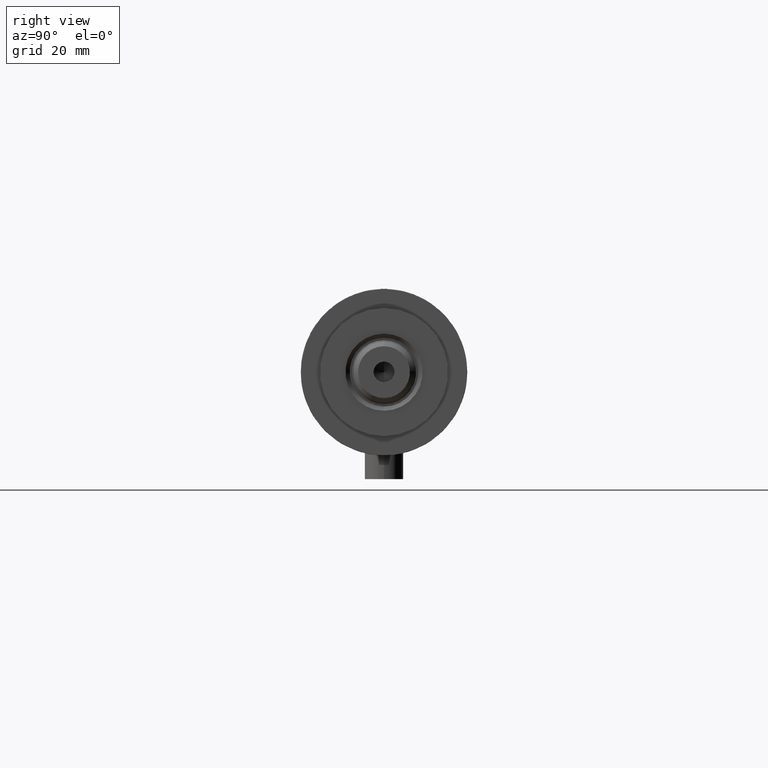
[diagram: clean part render]
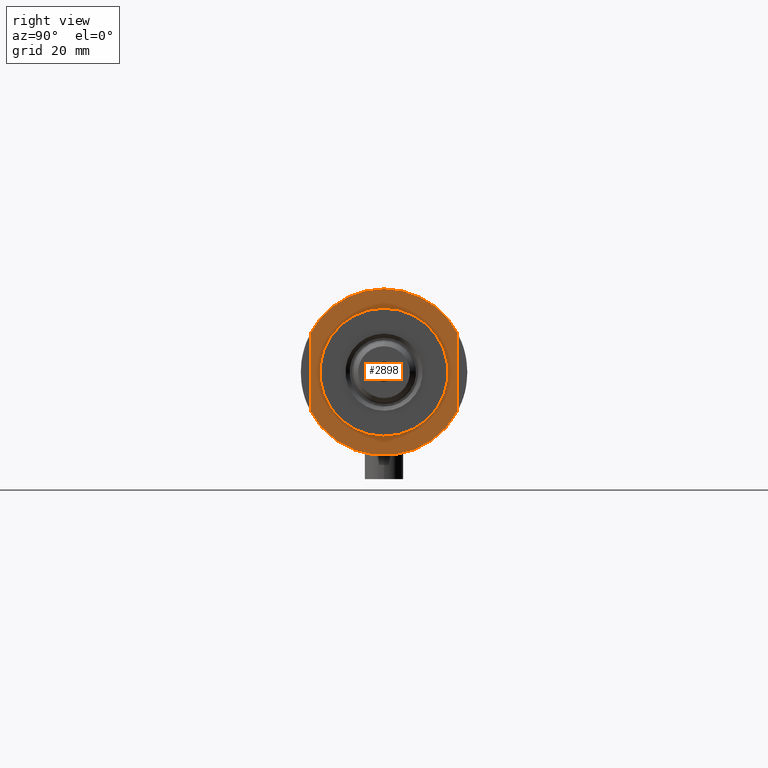
[diagram: same view with one face highlighted and labeled with its STEP entity id]
A machine part, right view. The second image highlights one B-rep face of the part: STEP entity #2898.
In plain terms, the highlighted planar face has unit normal (1, 0, -0).
Its self-contained STEP definition (entity closure, byte-faithful):
#16 = VERTEX_POINT ( 'NONE', #4367 ) ;
#134 = CIRCLE ( 'NONE', #823, 26.00000000000000355 ) ;
#142 = CIRCLE ( 'NONE', #4548, 20.00000000000000000 ) ;
#146 = EDGE_CURVE ( 'NONE', #4719, #4316, #142, .T. ) ;
#425 = EDGE_CURVE ( 'NONE', #1664, #4583, #134, .T. ) ;
#569 = ORIENTED_EDGE ( 'NONE', *, *, #1035, .F. ) ;
#601 = VECTOR ( 'NONE', #3834, 1000.000000000000000 ) ;
#668 = FACE_BOUND ( 'NONE', #2300, .T. ) ;
#681 = ORIENTED_EDGE ( 'NONE', *, *, #1603, .T. ) ;
#823 = AXIS2_PLACEMENT_3D ( 'NONE', #1490, #2991, #1113 ) ;
#824 = CARTESIAN_POINT ( 'NONE',  ( -12.12435565298215145, -22.99999999999999645, 15.50000000000000000 ) ) ;
#877 = LINE ( 'NONE', #824, #2982 ) ;
#893 = EDGE_LOOP ( 'NONE', ( #1367, #2591, #569, #3005, #2510 ) ) ;
#1035 = EDGE_CURVE ( 'NONE', #1664, #16, #4208, .T. ) ;
#1113 = DIRECTION ( 'NONE',  ( 1.000000000000000000, 0.000000000000000000, 0.000000000000000000 ) ) ;
#1157 = CARTESIAN_POINT ( 'NONE',  ( -20.00000000000000000, 2.449293598294706513E-15, 15.50000000000000000 ) ) ;
#1168 = AXIS2_PLACEMENT_3D ( 'NONE', #1865, #1842, #2183 ) ;
#1216 = EDGE_CURVE ( 'NONE', #4583, #3462, #2499, .T. ) ;
#1308 = AXIS2_PLACEMENT_3D ( 'NONE', #3103, #4608, #1616 ) ;
#1367 = ORIENTED_EDGE ( 'NONE', *, *, #3415, .F. ) ;
#1402 = DIRECTION ( 'NONE',  ( 1.000000000000000000, 0.000000000000000000, 0.000000000000000000 ) ) ;
#1490 = CARTESIAN_POINT ( 'NONE',  ( 0.000000000000000000, 0.000000000000000000, 15.50000000000000000 ) ) ;
#1603 = EDGE_CURVE ( 'NONE', #4316, #4719, #4625, .T. ) ;
#1616 = DIRECTION ( 'NONE',  ( 1.000000000000000000, 0.000000000000000000, 0.000000000000000000 ) ) ;
#1627 = AXIS2_PLACEMENT_3D ( 'NONE', #1757, #3307, #1402 ) ;
#1664 = VERTEX_POINT ( 'NONE', #3673 ) ;
#1757 = CARTESIAN_POINT ( 'NONE',  ( 0.000000000000000000, 0.000000000000000000, 15.50000000000000000 ) ) ;
#1816 = DIRECTION ( 'NONE',  ( -0.000000000000000000, -0.000000000000000000, -1.000000000000000000 ) ) ;
#1842 = DIRECTION ( 'NONE',  ( 0.000000000000000000, 0.000000000000000000, 1.000000000000000000 ) ) ;
#1865 = CARTESIAN_POINT ( 'NONE',  ( 0.000000000000000000, 0.000000000000000000, 15.50000000000000000 ) ) ;
#1942 = CARTESIAN_POINT ( 'NONE',  ( 12.12435565298215323, -22.99999999999999645, 15.50000000000000000 ) ) ;
#2066 = CARTESIAN_POINT ( 'NONE',  ( -26.00000000000000355, 0.000000000000000000, 15.50000000000000000 ) ) ;
#2183 = DIRECTION ( 'NONE',  ( 1.000000000000000000, 0.000000000000000000, 0.000000000000000000 ) ) ;
#2209 = DIRECTION ( 'NONE',  ( 1.000000000000000000, 0.000000000000000000, 0.000000000000000000 ) ) ;
#2274 = FACE_OUTER_BOUND ( 'NONE', #893, .T. ) ;
#2300 = EDGE_LOOP ( 'NONE', ( #2782, #681 ) ) ;
#2315 = CARTESIAN_POINT ( 'NONE',  ( -12.12435565298215145, 23.00000000000000355, 15.50000000000000000 ) ) ;
#2389 = CARTESIAN_POINT ( 'NONE',  ( -12.12435565298215323, -22.99999999999999645, 15.50000000000000000 ) ) ;
#2499 = CIRCLE ( 'NONE', #1627, 26.00000000000000355 ) ;
#2510 = ORIENTED_EDGE ( 'NONE', *, *, #1216, .T. ) ;
#2591 = ORIENTED_EDGE ( 'NONE', *, *, #3539, .T. ) ;
#2782 = ORIENTED_EDGE ( 'NONE', *, *, #146, .T. ) ;
#2898 = ADVANCED_FACE ( 'NONE', ( #668, #2274 ), #3728, .T. ) ;
#2940 = DIRECTION ( 'NONE',  ( 1.000000000000000000, 0.000000000000000000, -0.000000000000000000 ) ) ;
#2975 = CARTESIAN_POINT ( 'NONE',  ( 0.000000000000000000, 0.000000000000000000, 15.50000000000000000 ) ) ;
#2982 = VECTOR ( 'NONE', #3861, 1000.000000000000000 ) ;
#2991 = DIRECTION ( 'NONE',  ( 0.000000000000000000, 0.000000000000000000, 1.000000000000000000 ) ) ;
#2996 = CARTESIAN_POINT ( 'NONE',  ( 0.000000000000000000, 0.000000000000000000, 15.50000000000000000 ) ) ;
#3005 = ORIENTED_EDGE ( 'NONE', *, *, #425, .T. ) ;
#3103 = CARTESIAN_POINT ( 'NONE',  ( 0.000000000000000000, 0.000000000000000000, 15.50000000000000000 ) ) ;
#3307 = DIRECTION ( 'NONE',  ( 0.000000000000000000, 0.000000000000000000, 1.000000000000000000 ) ) ;
#3309 = AXIS2_PLACEMENT_3D ( 'NONE', #2996, #4452, #2940 ) ;
#3375 = CARTESIAN_POINT ( 'NONE',  ( 20.00000000000000000, 0.000000000000000000, 15.50000000000000000 ) ) ;
#3415 = EDGE_CURVE ( 'NONE', #3443, #3462, #877, .T. ) ;
#3443 = VERTEX_POINT ( 'NONE', #1942 ) ;
#3462 = VERTEX_POINT ( 'NONE', #2389 ) ;
#3539 = EDGE_CURVE ( 'NONE', #3443, #16, #4022, .T. ) ;
#3673 = CARTESIAN_POINT ( 'NONE',  ( -12.12435565298214613, 23.00000000000000355, 15.50000000000000000 ) ) ;
#3728 = PLANE ( 'NONE',  #3309 ) ;
#3834 = DIRECTION ( 'NONE',  ( 1.000000000000000000, 0.000000000000000000, 0.000000000000000000 ) ) ;
#3861 = DIRECTION ( 'NONE',  ( -1.000000000000000000, -0.000000000000000000, -0.000000000000000000 ) ) ;
#4022 = CIRCLE ( 'NONE', #1168, 26.00000000000000355 ) ;
#4208 = LINE ( 'NONE', #2315, #601 ) ;
#4316 = VERTEX_POINT ( 'NONE', #1157 ) ;
#4367 = CARTESIAN_POINT ( 'NONE',  ( 12.12435565298214790, 23.00000000000000355, 15.50000000000000000 ) ) ;
#4452 = DIRECTION ( 'NONE',  ( 0.000000000000000000, 0.000000000000000000, 1.000000000000000000 ) ) ;
#4548 = AXIS2_PLACEMENT_3D ( 'NONE', #2975, #1816, #2209 ) ;
#4583 = VERTEX_POINT ( 'NONE', #2066 ) ;
#4608 = DIRECTION ( 'NONE',  ( -0.000000000000000000, -0.000000000000000000, -1.000000000000000000 ) ) ;
#4625 = CIRCLE ( 'NONE', #1308, 20.00000000000000000 ) ;
#4719 = VERTEX_POINT ( 'NONE', #3375 ) ;